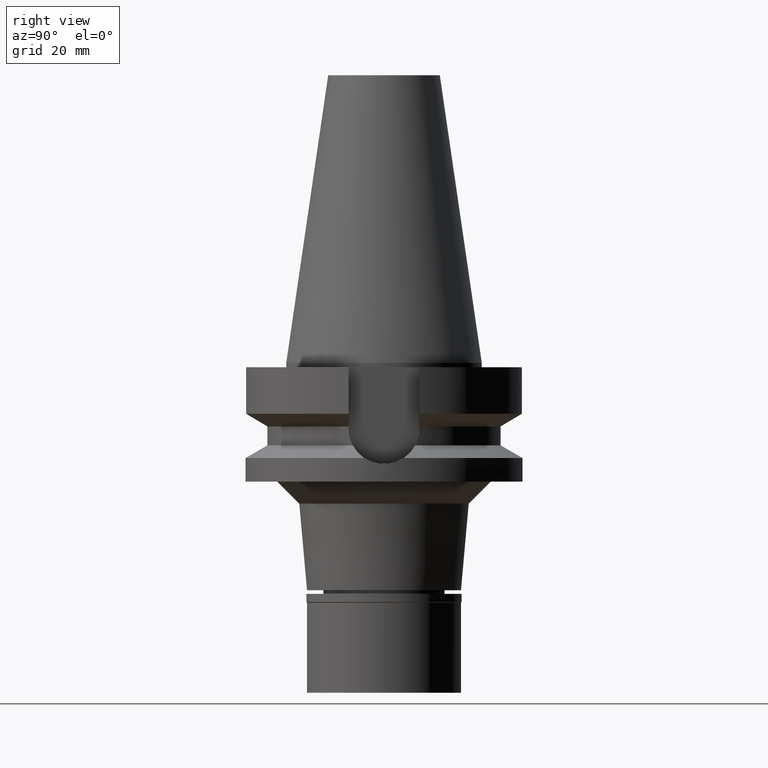
[diagram: clean part render]
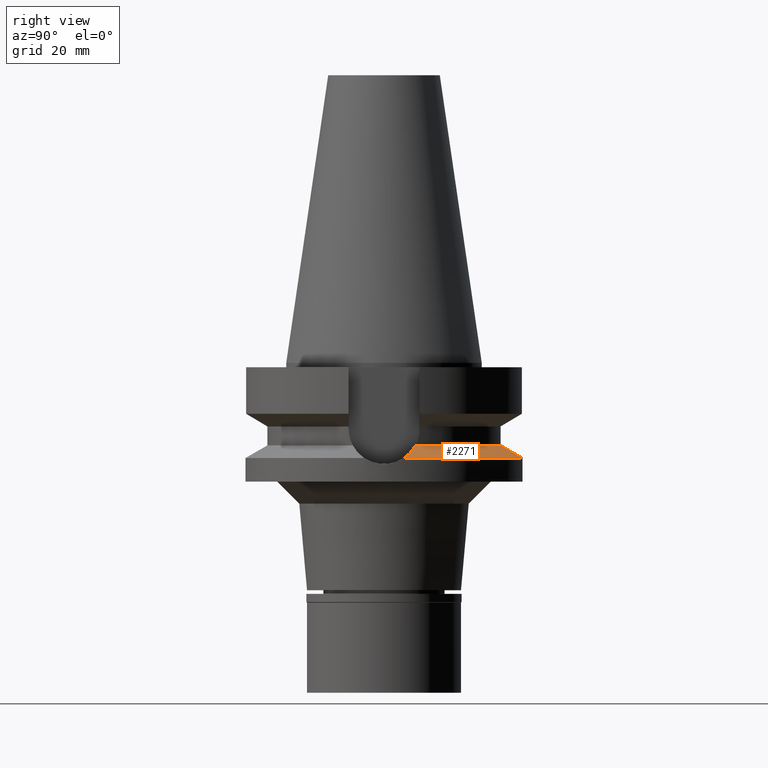
[diagram: same view with one face highlighted and labeled with its STEP entity id]
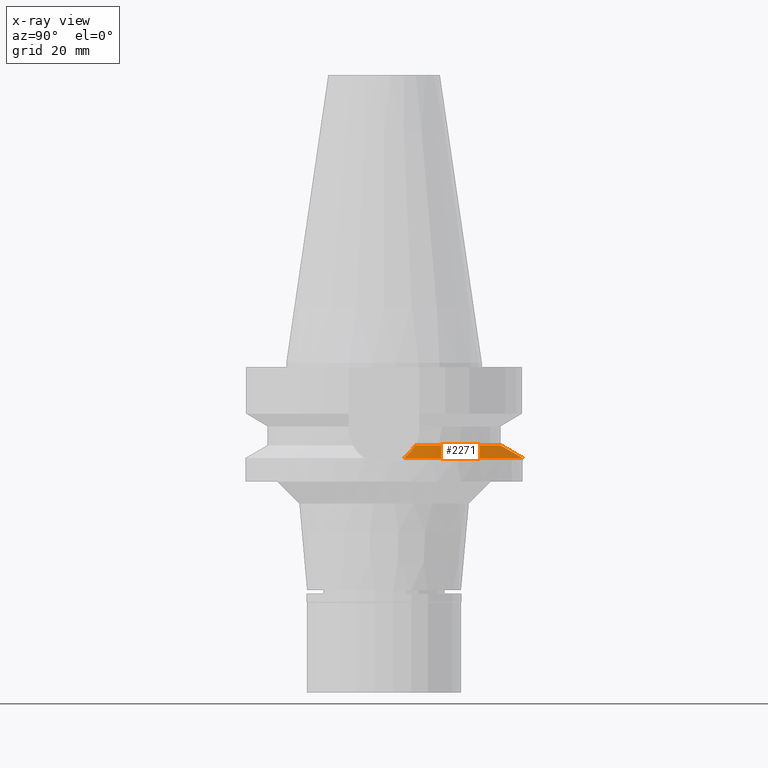
[diagram: x-ray of the same camera — body ghosted, the highlighted face saturated]
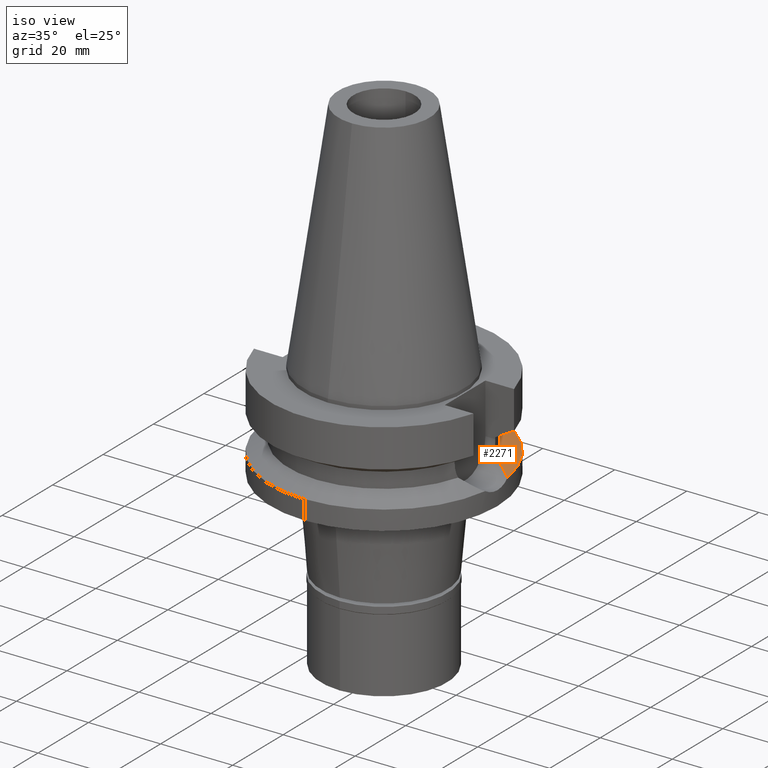
[diagram: same view with one face highlighted and labeled with its STEP entity id]
A machine part, right view. The second image highlights one B-rep face of the part: STEP entity #2271.
The next image is the same camera in x-ray: the body ghosted, the highlighted face saturated — about 0% of this face is hidden behind the body in this view.
A second angle (iso view) of the same face is appended — the face is thin or edge-on in the first view.
In plain terms, the highlighted conical surface has half-angle 60 deg.
Its self-contained STEP definition (entity closure, byte-faithful):
#114 = CARTESIAN_POINT ( 'NONE',  ( 0.0000000000000000000, 0.0000000000000000000, -20.19111867435999841 ) ) ;
#131 = CARTESIAN_POINT ( 'NONE',  ( -30.53349348185161105, 4.975260863024903557, -21.30587150051457712 ) ) ;
#152 = CARTESIAN_POINT ( 'NONE',  ( 30.50016680216901221, 4.971336969164497965, -21.28892033038642850 ) ) ;
#205 = CARTESIAN_POINT ( 'NONE',  ( 29.07465584250607904, 5.771657774630950755, -20.56177507463342735 ) ) ;
#255 = DIRECTION ( 'NONE',  ( 0.0000000000000000000, 0.0000000000000000000, -1.000000000000000000 ) ) ;
#285 = DIRECTION ( 'NONE',  ( -0.9898094849552905306, 0.1423979757318985240, 0.0000000000000000000 ) ) ;
#377 = CARTESIAN_POINT ( 'NONE',  ( 31.17899877608999759, 4.485536235554000051, -21.63449434733000132 ) ) ;
#390 = AXIS2_PLACEMENT_3D ( 'NONE', #2023, #1125, #891 ) ;
#399 = CARTESIAN_POINT ( 'NONE',  ( -27.60119037318082036, 6.420513206145075813, -19.80902401351270115 ) ) ;
#436 = CARTESIAN_POINT ( 'NONE',  ( 25.53175183775000079, 7.097862220092999941, -18.74774300138999905 ) ) ;
#498 = CARTESIAN_POINT ( 'NONE',  ( -31.17899877608999759, 4.485536235554000051, -21.63449434733000132 ) ) ;
#510 = ORIENTED_EDGE ( 'NONE', *, *, #1781, .F. ) ;
#617 = EDGE_LOOP ( 'NONE', ( #510, #994, #2532, #2371, #998 ) ) ;
#753 = B_SPLINE_CURVE_WITH_KNOTS ( 'NONE', 3,
 ( #377, #1112, #152, #1156, #1621, #3058, #2076, #205, #977, #2337, #2110, #947, #436 ),
 .UNSPECIFIED., .F., .F.,
 ( 4, 2, 2, 1, 2, 2, 4 ),
 ( 0.0000000000000000000, 0.2499999999999988898, 0.3749999999999976685, 0.4374999999999969469, 0.4687499999999963918, 0.4999999999999957812, 1.000000000000000000 ),
 .UNSPECIFIED. ) ;
#767 = EDGE_CURVE ( 'NONE', #2629, #1482, #1714, .T. ) ;
#815 = CARTESIAN_POINT ( 'NONE',  ( -28.61799408815337031, 5.989573894806493826, -20.32858689903460814 ) ) ;
#831 = CARTESIAN_POINT ( 'NONE',  ( -28.43694568819718071, 6.072176078215355766, -20.23613368222210696 ) ) ;
#864 = CARTESIAN_POINT ( 'NONE',  ( -26.17296412644879666, 6.921603949544212320, -19.07716416523238934 ) ) ;
#884 = CARTESIAN_POINT ( 'NONE',  ( 0.0000000000000000000, 0.0000000000000000000, -18.74774300138999905 ) ) ;
#888 = CIRCLE ( 'NONE', #2598, 26.49999999999998224 ) ;
#891 = DIRECTION ( 'NONE',  ( 0.0000000000000000000, 1.000000000000000000, 0.0000000000000000000 ) ) ;
#947 = CARTESIAN_POINT ( 'NONE',  ( 26.81248909336889952, 6.745809494844369425, -19.40571847184530441 ) ) ;
#977 = CARTESIAN_POINT ( 'NONE',  ( 28.96346312449589178, 5.826323030373267819, -20.50499891102392169 ) ) ;
#987 = VERTEX_POINT ( 'NONE', #498 ) ;
#994 = ORIENTED_EDGE ( 'NONE', *, *, #1333, .F. ) ;
#998 = ORIENTED_EDGE ( 'NONE', *, *, #1981, .F. ) ;
#1014 = FACE_OUTER_BOUND ( 'NONE', #617, .T. ) ;
#1063 = CARTESIAN_POINT ( 'NONE',  ( 0.0000000000000000000, 31.50000000000000000, -21.63449434733000132 ) ) ;
#1067 = DIRECTION ( 'NONE',  ( 0.0000000000000000000, 0.0000000000000000000, -1.000000000000000000 ) ) ;
#1112 = CARTESIAN_POINT ( 'NONE',  ( 30.85579123298800397, 4.730743664606521293, -21.46995133912792397 ) ) ;
#1125 = DIRECTION ( 'NONE',  ( 0.0000000000000000000, 0.0000000000000000000, -1.000000000000000000 ) ) ;
#1156 = CARTESIAN_POINT ( 'NONE',  ( 29.91810482436500607, 5.321431580932231675, -20.99220708710393524 ) ) ;
#1193 = CARTESIAN_POINT ( 'NONE',  ( 31.17899877608999759, 4.485536235554000051, -21.63449434733000132 ) ) ;
#1304 = B_SPLINE_CURVE_WITH_KNOTS ( 'NONE', 3,
 ( #1765, #864, #2710, #399, #1571, #1506, #831, #815, #1525, #2441, #2959, #131, #2264 ),
 .UNSPECIFIED., .F., .F.,
 ( 4, 2, 2, 1, 2, 2, 4 ),
 ( 0.0000000000000000000, 0.2499999999999987232, 0.3749999999999988343, 0.4374999999999992228, 0.4687499999999997780, 0.5000000000000003331, 1.000000000000000000 ),
 .UNSPECIFIED. ) ;
#1333 = EDGE_CURVE ( 'NONE', #2666, #2000, #888, .T. ) ;
#1374 = AXIS2_PLACEMENT_3D ( 'NONE', #1434, #255, #285 ) ;
#1423 = AXIS2_PLACEMENT_3D ( 'NONE', #114, #1067, #1988 ) ;
#1434 = CARTESIAN_POINT ( 'NONE',  ( 0.0000000000000000000, 0.0000000000000000000, -21.63449434733000132 ) ) ;
#1482 = VERTEX_POINT ( 'NONE', #1193 ) ;
#1506 = CARTESIAN_POINT ( 'NONE',  ( -28.24975181841623595, 6.153710913625250356, -20.14051855986780737 ) ) ;
#1525 = CARTESIAN_POINT ( 'NONE',  ( -28.73732736149643330, 5.934287754562193484, -20.38952399736110976 ) ) ;
#1571 = CARTESIAN_POINT ( 'NONE',  ( -27.86717011908804764, 6.315119542780919026, -19.94503041788500397 ) ) ;
#1621 = CARTESIAN_POINT ( 'NONE',  ( 29.71597994316774916, 5.436326886593569441, -20.88911373272198446 ) ) ;
#1714 = CIRCLE ( 'NONE', #390, 31.50000000000000000 ) ;
#1765 = CARTESIAN_POINT ( 'NONE',  ( -25.53175183775000079, 7.097862220092999941, -18.74774300138999905 ) ) ;
#1781 = EDGE_CURVE ( 'NONE', #2000, #987, #1304, .T. ) ;
#1804 = CIRCLE ( 'NONE', #1374, 31.50000000000001421 ) ;
#1981 = EDGE_CURVE ( 'NONE', #987, #2629, #1804, .T. ) ;
#1988 = DIRECTION ( 'NONE',  ( 0.0000000000000000000, -1.000000000000000000, 0.0000000000000000000 ) ) ;
#2000 = VERTEX_POINT ( 'NONE', #2375 ) ;
#2023 = CARTESIAN_POINT ( 'NONE',  ( 0.0000000000000000000, 0.0000000000000000000, -21.63449434733000132 ) ) ;
#2076 = CARTESIAN_POINT ( 'NONE',  ( 29.23992537790963198, 5.689207585266087719, -20.64615748090274039 ) ) ;
#2110 = CARTESIAN_POINT ( 'NONE',  ( 27.91882210241021411, 6.325436092026015089, -19.97153249875509573 ) ) ;
#2205 = CARTESIAN_POINT ( 'NONE',  ( 25.53175183775000079, 7.097862220092999941, -18.74774300138999905 ) ) ;
#2250 = DIRECTION ( 'NONE',  ( 0.0000000000000000000, 0.0000000000000000000, 1.000000000000000000 ) ) ;
#2264 = CARTESIAN_POINT ( 'NONE',  ( -31.17899877608999759, 4.485536235554000051, -21.63449434733000132 ) ) ;
#2271 = ADVANCED_FACE ( 'NONE', ( #1014 ), #2649, .T. ) ;
#2337 = CARTESIAN_POINT ( 'NONE',  ( 28.90899641252794439, 5.852723788648343195, -20.47718573823986787 ) ) ;
#2371 = ORIENTED_EDGE ( 'NONE', *, *, #767, .F. ) ;
#2375 = CARTESIAN_POINT ( 'NONE',  ( -25.53175183775000079, 7.097862220092999941, -18.74774300138999905 ) ) ;
#2434 = EDGE_CURVE ( 'NONE', #1482, #2666, #753, .T. ) ;
#2441 = CARTESIAN_POINT ( 'NONE',  ( -28.79810678282148118, 5.905677903039461718, -20.42056028222843977 ) ) ;
#2532 = ORIENTED_EDGE ( 'NONE', *, *, #2434, .F. ) ;
#2598 = AXIS2_PLACEMENT_3D ( 'NONE', #884, #2250, #2963 ) ;
#2629 = VERTEX_POINT ( 'NONE', #1063 ) ;
#2649 = CONICAL_SURFACE ( 'NONE', #1423, 29.00000000000000000, 1.047197551196400456 ) ;
#2666 = VERTEX_POINT ( 'NONE', #2205 ) ;
#2710 = CARTESIAN_POINT ( 'NONE',  ( -26.77047529639384393, 6.728056548043555019, -19.38375369895911149 ) ) ;
#2959 = CARTESIAN_POINT ( 'NONE',  ( -29.75869793812093178, 5.446784089146971652, -20.91110181491599462 ) ) ;
#2963 = DIRECTION ( 'NONE',  ( 0.9634623335000935818, 0.2678438573619981722, 0.0000000000000000000 ) ) ;
#3058 = CARTESIAN_POINT ( 'NONE',  ( 29.40063628847799038, 5.605450735034765763, -20.72818981551532147 ) ) ;